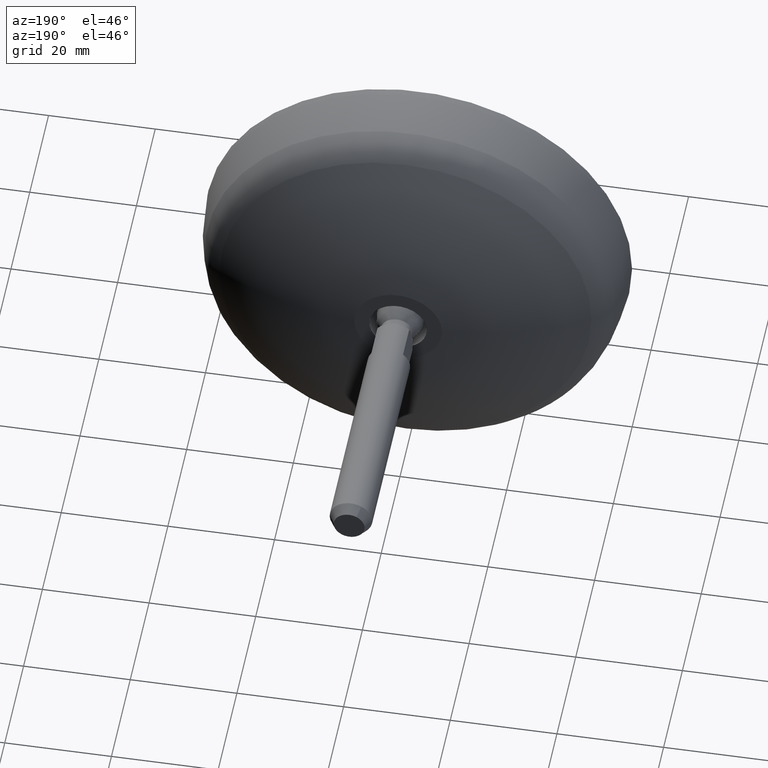
[diagram: clean part render]
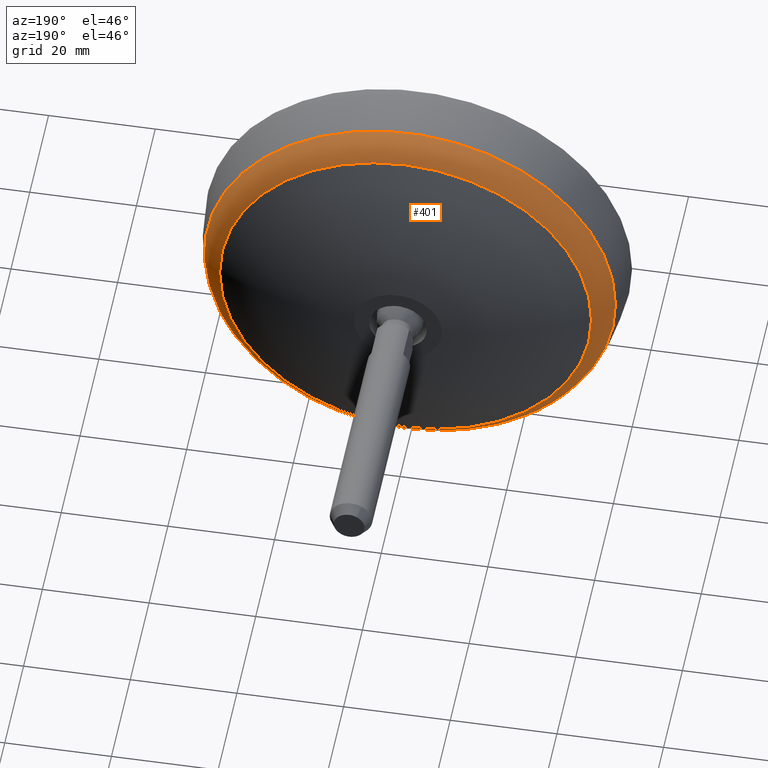
[diagram: same view with one face highlighted and labeled with its STEP entity id]
A machine part, auxiliary view. The second image highlights one B-rep face of the part: STEP entity #401.
In plain terms, the highlighted toroidal blend (fillet) surface has major radius 30.7394 mm and minor (blend) radius 8.1924 mm.
Its self-contained STEP definition (entity closure, byte-faithful):
#40=TOROIDAL_SURFACE('',#478,30.7394398328875,8.19242065290035);
#80=FACE_OUTER_BOUND('',#104,.T.);
#104=EDGE_LOOP('',(#289,#290,#291,#292,#293,#294));
#133=CIRCLE('',#475,38.545620864977);
#134=CIRCLE('',#476,38.545620864977);
#136=CIRCLE('',#479,34.8694444341819);
#137=CIRCLE('',#480,34.8694444341819);
#138=CIRCLE('',#481,8.19242065290035);
#176=VERTEX_POINT('',#723);
#177=VERTEX_POINT('',#724);
#178=VERTEX_POINT('',#729);
#179=VERTEX_POINT('',#730);
#220=EDGE_CURVE('',#176,#177,#133,.T.);
#221=EDGE_CURVE('',#177,#176,#134,.T.);
#223=EDGE_CURVE('',#178,#179,#136,.T.);
#224=EDGE_CURVE('',#179,#178,#137,.T.);
#225=EDGE_CURVE('',#179,#177,#138,.T.);
#289=ORIENTED_EDGE('',*,*,#223,.F.);
#290=ORIENTED_EDGE('',*,*,#224,.F.);
#291=ORIENTED_EDGE('',*,*,#225,.T.);
#292=ORIENTED_EDGE('',*,*,#221,.T.);
#293=ORIENTED_EDGE('',*,*,#220,.T.);
#294=ORIENTED_EDGE('',*,*,#225,.F.);
#401=ADVANCED_FACE('',(#80),#40,.T.);
#475=AXIS2_PLACEMENT_3D('',#725,#554,#555);
#476=AXIS2_PLACEMENT_3D('',#726,#556,#557);
#478=AXIS2_PLACEMENT_3D('',#728,#560,#561);
#479=AXIS2_PLACEMENT_3D('',#731,#562,#563);
#480=AXIS2_PLACEMENT_3D('',#732,#564,#565);
#481=AXIS2_PLACEMENT_3D('',#733,#566,#567);
#554=DIRECTION('center_axis',(-1.29031692906312E-13,1.,0.));
#555=DIRECTION('ref_axis',(-1.,-1.29031696758471E-13,0.));
#556=DIRECTION('center_axis',(-1.29031692906312E-13,1.,0.));
#557=DIRECTION('ref_axis',(-1.,-1.29031696758471E-13,0.));
#560=DIRECTION('center_axis',(-1.29031692906312E-13,1.,0.));
#561=DIRECTION('ref_axis',(0.,0.,1.));
#562=DIRECTION('center_axis',(-1.29031692906312E-13,1.,0.));
#563=DIRECTION('ref_axis',(-1.,-1.2903169675847E-13,0.));
#564=DIRECTION('center_axis',(-1.29031692906312E-13,1.,0.));
#565=DIRECTION('ref_axis',(-1.,-1.2903169675847E-13,0.));
#566=DIRECTION('center_axis',(-1.,-1.29031692906312E-13,1.22464679914736E-16));
#567=DIRECTION('ref_axis',(-1.22464679914736E-16,0.,-1.));
#723=CARTESIAN_POINT('',(-38.5456208649782,9.51791923438431,0.));
#724=CARTESIAN_POINT('',(-1.22643923473568E-12,9.51791923438929,-38.545620864977));
#725=CARTESIAN_POINT('Origin',(-1.22145189361105E-12,9.51791923438929,0.));
#726=CARTESIAN_POINT('Origin',(-1.22145189361105E-12,9.51791923438929,0.));
#728=CARTESIAN_POINT('Origin',(-9.01501095995627E-13,7.03210068744846,0.));
#729=CARTESIAN_POINT('',(-34.8694444341837,14.1073263479693,0.));
#730=CARTESIAN_POINT('',(-1.81869971601882E-12,14.1073263479738,-34.8694444341819));
#731=CARTESIAN_POINT('Origin',(-1.81363086291312E-12,14.1073263479738,0.));
#732=CARTESIAN_POINT('Origin',(-1.81363086291312E-12,14.1073263479738,0.));
#733=CARTESIAN_POINT('Origin',(-9.0526559165552E-13,7.03210068744846,-30.7394398328875));